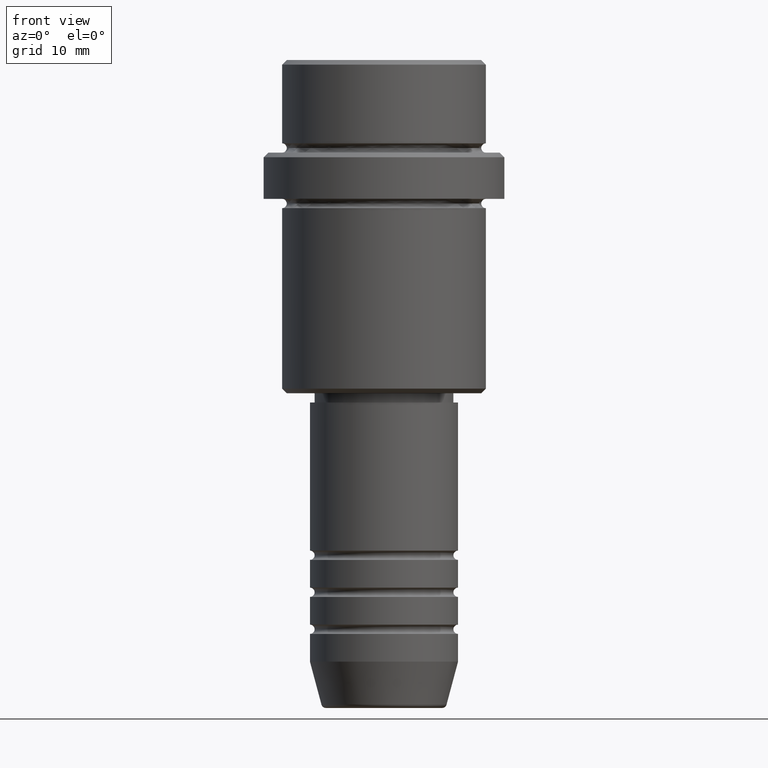
[diagram: clean part render]
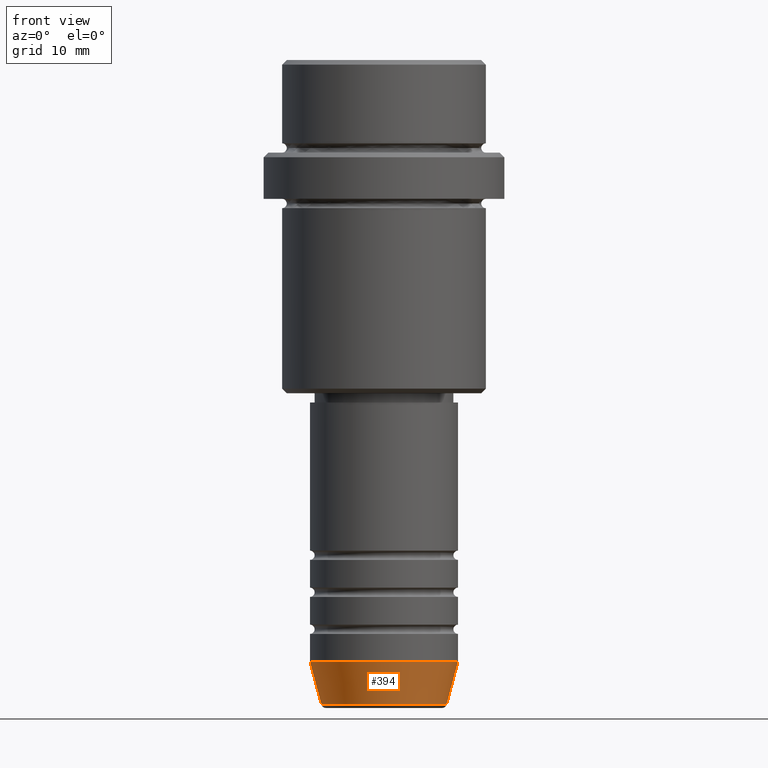
[diagram: same view with one face highlighted and labeled with its STEP entity id]
A machine part, front view. The second image highlights one B-rep face of the part: STEP entity #394.
In plain terms, the highlighted conical surface has half-angle 15 deg.
Its self-contained STEP definition (entity closure, byte-faithful):
#13 = ORIENTED_EDGE ( 'NONE', *, *, #1232, .F. ) ;
#19 = EDGE_LOOP ( 'NONE', ( #801, #1409, #954, #13 ) ) ;
#24 = CIRCLE ( 'NONE', #1348, 6.759553456999436882 ) ;
#41 = EDGE_CURVE ( 'NONE', #1264, #1315, #24, .T. ) ;
#76 = AXIS2_PLACEMENT_3D ( 'NONE', #639, #974, #952 ) ;
#205 = DIRECTION ( 'NONE',  ( 0.2588190451025213501, 0.000000000000000000, 0.9659258262890680902 ) ) ;
#223 = DIRECTION ( 'NONE',  ( -0.2588190451025213501, 3.169619151431772337E-17, 0.9659258262890680902 ) ) ;
#245 = CARTESIAN_POINT ( 'NONE',  ( -8.000000000000000000, 9.797174393178825657E-16, -65.00000000000000000 ) ) ;
#324 = CARTESIAN_POINT ( 'NONE',  ( 0.000000000000000000, 0.000000000000000000, -65.00000000000000000 ) ) ;
#394 = ADVANCED_FACE ( 'NONE', ( #1304 ), #642, .T. ) ;
#416 = LINE ( 'NONE', #1176, #469 ) ;
#468 = DIRECTION ( 'NONE',  ( 1.000000000000000000, 0.000000000000000000, 0.000000000000000000 ) ) ;
#469 = VECTOR ( 'NONE', #205, 1000.000000000000000 ) ;
#639 = CARTESIAN_POINT ( 'NONE',  ( 0.000000000000000000, 0.000000000000000000, -65.00000000000000000 ) ) ;
#642 = CONICAL_SURFACE ( 'NONE', #1095, 8.000000000000000000, 0.2617993877991500740 ) ;
#670 = VECTOR ( 'NONE', #223, 1000.000000000000000 ) ;
#765 = DIRECTION ( 'NONE',  ( 1.000000000000000000, 0.000000000000000000, 0.000000000000000000 ) ) ;
#771 = CARTESIAN_POINT ( 'NONE',  ( -6.759553456999437770, 9.037619948979308185E-16, -69.62940952255127058 ) ) ;
#801 = ORIENTED_EDGE ( 'NONE', *, *, #805, .F. ) ;
#805 = EDGE_CURVE ( 'NONE', #1264, #994, #1312, .T. ) ;
#952 = DIRECTION ( 'NONE',  ( 1.000000000000000000, 0.000000000000000000, 0.000000000000000000 ) ) ;
#954 = ORIENTED_EDGE ( 'NONE', *, *, #1227, .T. ) ;
#974 = DIRECTION ( 'NONE',  ( -0.000000000000000000, -0.000000000000000000, 1.000000000000000000 ) ) ;
#980 = DIRECTION ( 'NONE',  ( -0.000000000000000000, -0.000000000000000000, 1.000000000000000000 ) ) ;
#994 = VERTEX_POINT ( 'NONE', #245 ) ;
#1010 = CARTESIAN_POINT ( 'NONE',  ( 0.000000000000000000, 0.000000000000000000, -69.62940952255127058 ) ) ;
#1080 = CIRCLE ( 'NONE', #76, 8.000000000000000000 ) ;
#1085 = CARTESIAN_POINT ( 'NONE',  ( -8.000000000000000000, 9.797174393178825657E-16, -65.00000000000000000 ) ) ;
#1095 = AXIS2_PLACEMENT_3D ( 'NONE', #324, #980, #765 ) ;
#1176 = CARTESIAN_POINT ( 'NONE',  ( 8.000000000000000000, 0.000000000000000000, -65.00000000000000000 ) ) ;
#1220 = CARTESIAN_POINT ( 'NONE',  ( 6.759553456999436882, 0.000000000000000000, -69.62940952255127058 ) ) ;
#1227 = EDGE_CURVE ( 'NONE', #1315, #1309, #416, .T. ) ;
#1232 = EDGE_CURVE ( 'NONE', #994, #1309, #1080, .T. ) ;
#1264 = VERTEX_POINT ( 'NONE', #771 ) ;
#1304 = FACE_OUTER_BOUND ( 'NONE', #19, .T. ) ;
#1309 = VERTEX_POINT ( 'NONE', #1327 ) ;
#1312 = LINE ( 'NONE', #1085, #670 ) ;
#1315 = VERTEX_POINT ( 'NONE', #1220 ) ;
#1327 = CARTESIAN_POINT ( 'NONE',  ( 8.000000000000000000, 0.000000000000000000, -65.00000000000000000 ) ) ;
#1343 = DIRECTION ( 'NONE',  ( -0.000000000000000000, -0.000000000000000000, 1.000000000000000000 ) ) ;
#1348 = AXIS2_PLACEMENT_3D ( 'NONE', #1010, #1343, #468 ) ;
#1409 = ORIENTED_EDGE ( 'NONE', *, *, #41, .T. ) ;